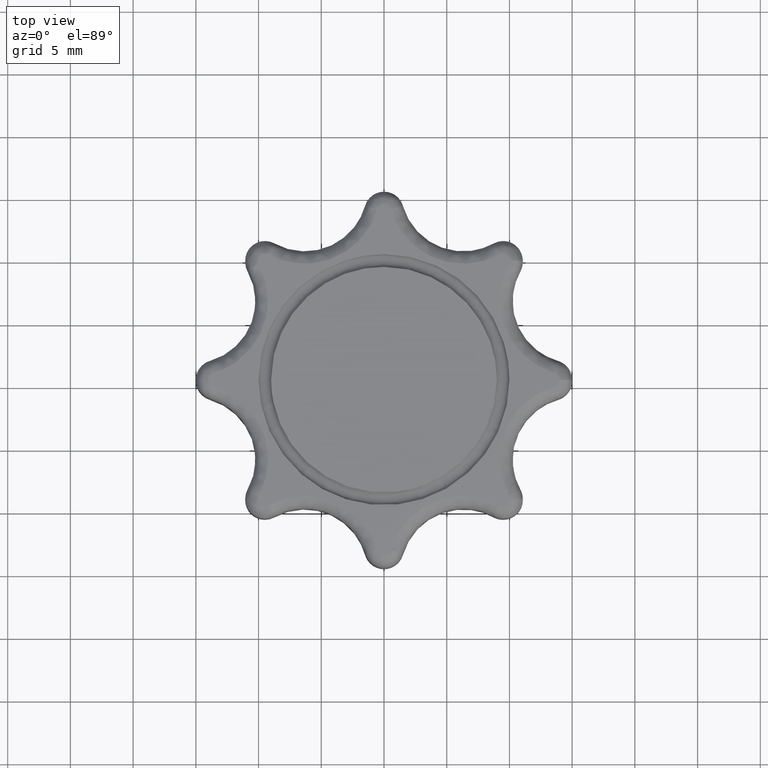
[diagram: clean part render]
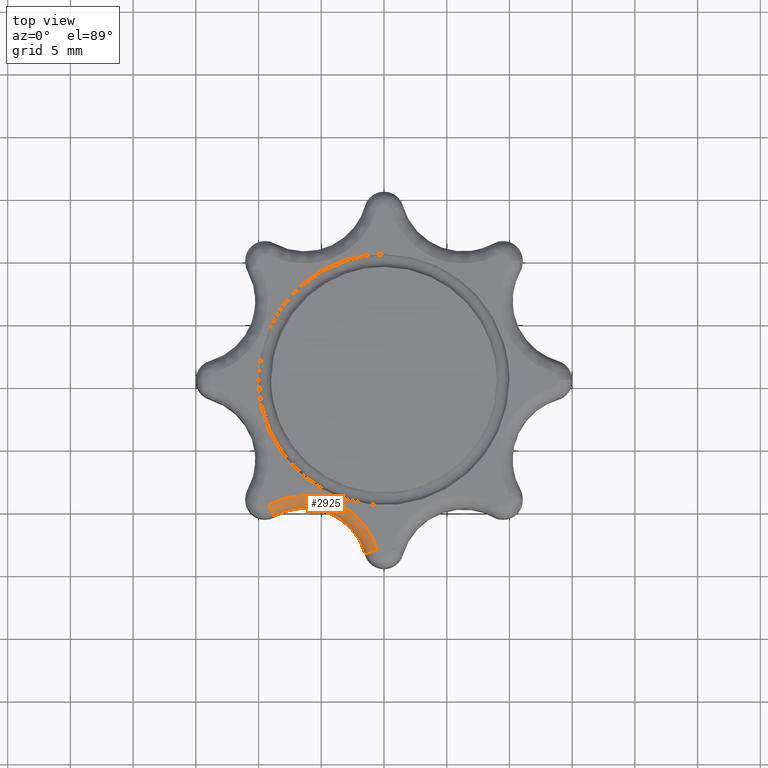
[diagram: same view with one face highlighted and labeled with its STEP entity id]
A machine part, top view. The second image highlights one B-rep face of the part: STEP entity #2925.
In plain terms, the highlighted face is a freeform B-spline surface patch.
Its self-contained STEP definition (entity closure, byte-faithful):
#2807=CARTESIAN_POINT('',(-0.547429443781463,-13.587672348141581,10.0));
#2808=VERTEX_POINT('',#2807);
#2809=CARTESIAN_POINT('',(-1.508571734779690,-13.863725778597461,9.0));
#2810=VERTEX_POINT('',#2809);
#2811=CARTESIAN_POINT('',(-0.547429443781463,-13.587672348141581,9.999999999999998));
#2812=CARTESIAN_POINT('',(-1.508571734774766,-13.863725778593269,9.999999999999998));
#2813=CARTESIAN_POINT('',(-1.508571734779690,-13.863725778597461,9.0));
#2821=(BOUNDED_CURVE()B_SPLINE_CURVE(2,(#2811,#2812,#2813),.UNSPECIFIED.,.F.,.U.)CURVE()GEOMETRIC_REPRESENTATION_ITEM()QUASI_UNIFORM_CURVE()RATIONAL_B_SPLINE_CURVE((1.0,0.707106781186548,1.0))REPRESENTATION_ITEM(''));
#2822=EDGE_CURVE('',#2808,#2810,#2821,.T.);
#2858=CARTESIAN_POINT('',(-0.369720214136671,-14.019572757298221,9.997592351187583));
#2859=CARTESIAN_POINT('',(-2.176036637263963,-5.250039119455583,9.997592351187583));
#2860=CARTESIAN_POINT('',(-9.653116446506564,-10.175562114217627,9.997592351187585));
#2861=CARTESIAN_POINT('',(-1.493224570844482,-14.250988070219654,10.077335673061139));
#2862=CARTESIAN_POINT('',(-2.958152375325911,-7.138871115556084,10.077335673061139));
#2863=CARTESIAN_POINT('',(-9.022085564795844,-11.133484403823285,10.077335673061144));
#2864=CARTESIAN_POINT('',(-1.414700055414289,-14.234813878102116,8.930275787978767));
#2865=CARTESIAN_POINT('',(-2.903488360028627,-7.006855946823267,8.930275787978770));
#2866=CARTESIAN_POINT('',(-9.066189883494722,-11.066532831128468,8.930275787978768));
#2874=(BOUNDED_SURFACE()B_SPLINE_SURFACE(2,2,((#2858,#2861,#2864),(#2859,#2862,#2865),(#2860,#2863,#2866)),.UNSPECIFIED.,.F.,.F.,.U.)B_SPLINE_SURFACE_WITH_KNOTS((3,3),(3,3),(0.0,12.872673651799790),(0.0,1.822370347376446),.UNSPECIFIED.)GEOMETRIC_REPRESENTATION_ITEM()RATIONAL_B_SPLINE_SURFACE(((0.843482923784307,0.551979254836490,0.838810756174185),(0.472521148839432,0.309220097142794,0.469903789383238),(0.840783894963682,0.550212997482391,0.836126677644406)))REPRESENTATION_ITEM('')SURFACE());
#2875=CARTESIAN_POINT('',(-9.220842538419340,-9.995028746896130,10.0));
#2876=VERTEX_POINT('',#2875);
#2877=CARTESIAN_POINT('',(-8.736414658567961,-10.869859947312980,9.0));
#2878=VERTEX_POINT('',#2877);
#2879=CARTESIAN_POINT('',(-9.220842538419340,-9.995028746896130,9.999999999999998));
#2880=CARTESIAN_POINT('',(-8.736414658568881,-10.869859947313438,9.999999999999998));
#2881=CARTESIAN_POINT('',(-8.736414658567961,-10.869859947312980,9.0));
#2889=(BOUNDED_CURVE()B_SPLINE_CURVE(2,(#2879,#2880,#2881),.UNSPECIFIED.,.F.,.U.)CURVE()GEOMETRIC_REPRESENTATION_ITEM()QUASI_UNIFORM_CURVE()RATIONAL_B_SPLINE_CURVE((1.0,0.707106781186548,1.0))REPRESENTATION_ITEM(''));
#2890=EDGE_CURVE('',#2876,#2878,#2889,.T.);
#2891=ORIENTED_EDGE('',*,*,#2890,.T.);
#2892=CARTESIAN_POINT('',(-1.508571734779690,-13.863725778597461,9.0));
#2893=CARTESIAN_POINT('',(-2.173970453637588,-11.547021985047788,8.999999999999998));
#2894=CARTESIAN_POINT('',(-4.400859969859356,-10.624615604200811,9.0));
#2895=CARTESIAN_POINT('',(-6.627749486081124,-9.702209223353833,8.999999999999998));
#2896=CARTESIAN_POINT('',(-8.736414658567961,-10.869859947312980,9.0));
#2904=(BOUNDED_CURVE()B_SPLINE_CURVE(2,(#2892,#2893,#2894,#2895,#2896),.UNSPECIFIED.,.F.,.U.)B_SPLINE_CURVE_WITH_KNOTS((3,2,3),(0.0,0.500000000000000,1.0),.UNSPECIFIED.)CURVE()GEOMETRIC_REPRESENTATION_ITEM()RATIONAL_B_SPLINE_CURVE((1.0,0.900793039964459,1.0,0.900793039964459,1.0))REPRESENTATION_ITEM(''));
#2905=EDGE_CURVE('',#2810,#2878,#2904,.T.);
#2906=ORIENTED_EDGE('',*,*,#2905,.F.);
#2907=ORIENTED_EDGE('',*,*,#2822,.F.);
#2908=CARTESIAN_POINT('',(-9.220842538419340,-9.995028746896130,10.0));
#2909=CARTESIAN_POINT('',(-6.690443212816321,-8.593847506927297,10.000000000000004));
#2910=CARTESIAN_POINT('',(-4.018174901038814,-9.700736749531654,10.0));
#2911=CARTESIAN_POINT('',(-1.345906589261309,-10.807625992136012,10.000000000000004));
#2912=CARTESIAN_POINT('',(-0.547429443781463,-13.587672348141581,10.0));
#2920=(BOUNDED_CURVE()B_SPLINE_CURVE(2,(#2908,#2909,#2910,#2911,#2912),.UNSPECIFIED.,.F.,.U.)B_SPLINE_CURVE_WITH_KNOTS((3,2,3),(0.0,0.500000000000000,1.0),.UNSPECIFIED.)CURVE()GEOMETRIC_REPRESENTATION_ITEM()RATIONAL_B_SPLINE_CURVE((1.0,0.900792971933364,1.0,0.900792971933364,1.0))REPRESENTATION_ITEM(''));
#2921=EDGE_CURVE('',#2876,#2808,#2920,.T.);
#2922=ORIENTED_EDGE('',*,*,#2921,.F.);
#2923=EDGE_LOOP('',(#2891,#2906,#2907,#2922));
#2924=FACE_OUTER_BOUND('',#2923,.T.);
#2925=ADVANCED_FACE('',(#2924),#2874,.T.);